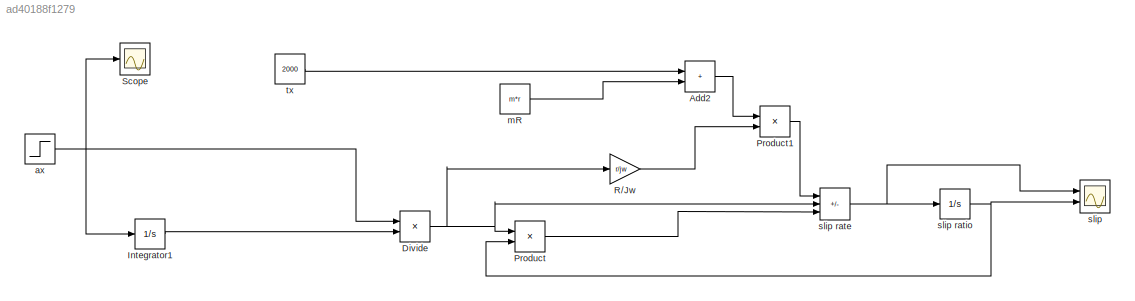
MODEL slx_ad40188f1279
KIND model
CONFIG AbsTol = auto
CONFIG EnableMultiTasking = off
CONFIG FixedStep = auto
CONFIG MaxStep = auto
CONFIG MinStep = auto
CONFIG RelTol = 1e-3
CONFIG SampleTimeConstraint = Unconstrained
CONFIG SolverName = VariableStepAuto
CONFIG StartTime = 0.0
CONFIG StopTime = 10.0
BLOCK [Sum] Add2
  IconShape = rectangular
  Ports = [2, 1]
BLOCK [Product] Divide
  Inputs = */
  Ports = [2, 1]
BLOCK [Integrator] Integrator1
  Ports = [1, 1]
BLOCK [Product] Product
  Ports = [2, 1]
BLOCK [Product] Product1
  Ports = [2, 1]
BLOCK [Gain] R//Jw
  Gain = r/jw
BLOCK [Scope] Scope
  Floating = off
  NumInputPorts = 1
  Ports = [1]
  ScopeSpecificationString = Simulink.scopes.TimeScopeBlockCfg('CurrentConfiguration', extmgr.ConfigurationSet(extmgr.Configuration('Core','General UI',true),extmgr.Configuration('Core','Source UI',true),extmgr.Configuration('Sources','WiredSimulink',true),extmgr.Configuration('Visuals','Time Domain',true),extmgr.Configuration('Tools','Plot Navigation',true),extmgr.Configuration('Tools','Measurements',true)),'Version','2020b'...<+1ch>
BLOCK [Step] ax
  After = 20
  SampleTime = 0
BLOCK [Constant] mR
  Value = m*r
BLOCK [Scope] slip
  Floating = off
  NumInputPorts = 2
  Ports = [2]
  ScopeSpecificationString = Simulink.scopes.TimeScopeBlockCfg('CurrentConfiguration', extmgr.ConfigurationSet(extmgr.Configuration('Core','General UI',true),extmgr.Configuration('Core','Source UI',true),extmgr.Configuration('Sources','WiredSimulink',true,'DataLoggingVariableName','ScopeData1'),extmgr.Configuration('Visuals','Time Domain',true),extmgr.Configuration('Tools','Plot Navigation',true),extmgr.Configuration('Tools',...<+40ch>
BLOCK [Sum] slip rate
  IconShape = rectangular
  Inputs = ++-
  Ports = [3, 1]
BLOCK [Integrator] slip ratio
  Ports = [1, 1]
BLOCK [Constant] tx
  Value = 2000
LINE Add2:1 -> Product1:1
NET Divide:1 -> Product:1, R//Jw:1, slip rate:2
LINE Integrator1:1 -> Divide:2
LINE Product1:1 -> slip rate:1
LINE Product:1 -> slip rate:3
LINE R//Jw:1 -> Product1:2
NET ax:1 -> Divide:1, Integrator1:1, Scope:1
LINE mR:1 -> Add2:2
NET slip rate:1 -> slip ratio:1, slip:1
NET slip ratio:1 -> Product:2, slip:2
LINE tx:1 -> Add2:1
note: NET lines group one-source signal fan-out (src -> all destinations, sorted); 1:1 wires keep LINE
